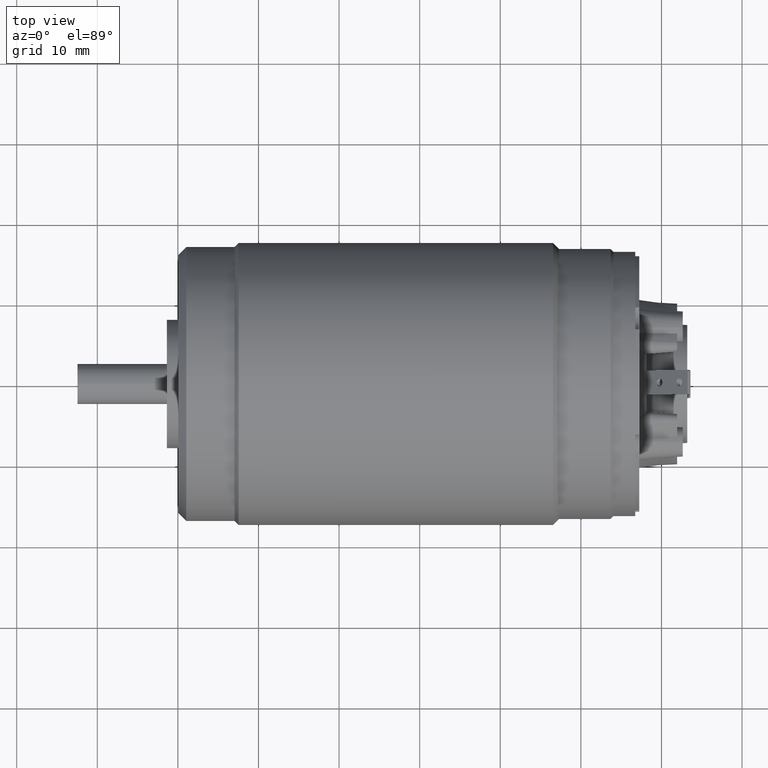
[diagram: clean part render]
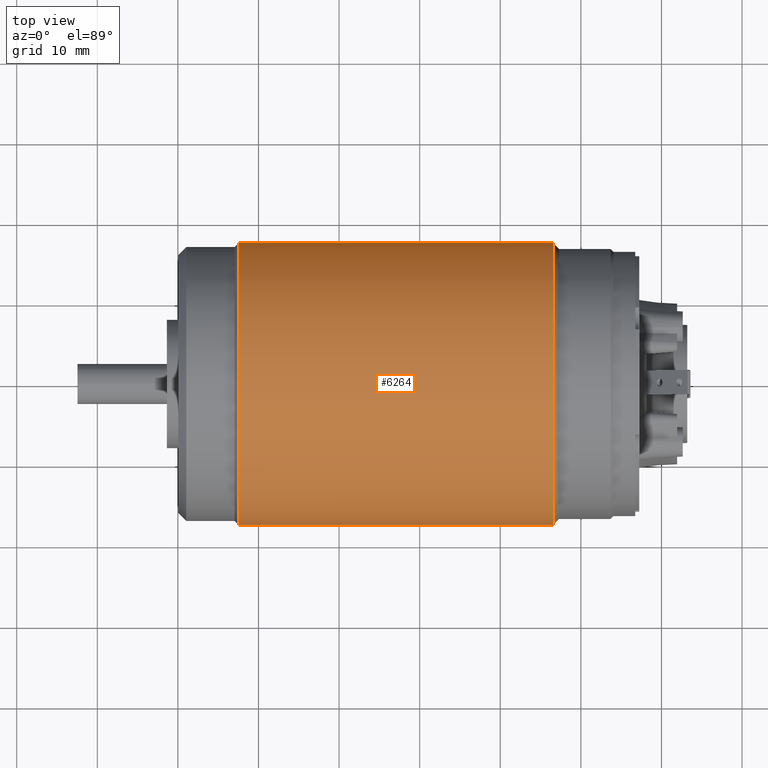
[diagram: same view with one face highlighted and labeled with its STEP entity id]
A machine part, top view. The second image highlights one B-rep face of the part: STEP entity #6264.
In plain terms, the highlighted cylindrical surface (partial cylindrical patch) has radius 17.5 mm, axis along (-1, 0, 0).
Its self-contained STEP definition (entity closure, byte-faithful):
#2183=DIRECTION('',(-1.E0,0.E0,0.E0));
#2184=VECTOR('',#2183,3.9E1);
#2185=CARTESIAN_POINT('',(-3.46E0,1.75E1,0.E0));
#2186=LINE('',#2185,#2184);
#2187=CARTESIAN_POINT('',(-3.46E0,0.E0,0.E0));
#2188=DIRECTION('',(1.E0,0.E0,0.E0));
#2189=DIRECTION('',(0.E0,1.E0,0.E0));
#2190=AXIS2_PLACEMENT_3D('',#2187,#2188,#2189);
#2192=DIRECTION('',(-1.E0,0.E0,0.E0));
#2193=VECTOR('',#2192,3.9E1);
#2194=CARTESIAN_POINT('',(-3.46E0,-1.75E1,0.E0));
#2195=LINE('',#2194,#2193);
#2210=CARTESIAN_POINT('',(-4.246E1,0.E0,0.E0));
#2211=DIRECTION('',(1.E0,0.E0,0.E0));
#2212=DIRECTION('',(0.E0,1.E0,0.E0));
#2213=AXIS2_PLACEMENT_3D('',#2210,#2211,#2212);
#3262=CARTESIAN_POINT('',(-3.46E0,1.75E1,0.E0));
#3263=VERTEX_POINT('',#3262);
#3264=CARTESIAN_POINT('',(-4.246E1,1.75E1,0.E0));
#3265=VERTEX_POINT('',#3264);
#3280=CARTESIAN_POINT('',(-3.46E0,-1.75E1,0.E0));
#3281=VERTEX_POINT('',#3280);
#3282=CARTESIAN_POINT('',(-4.246E1,-1.75E1,0.E0));
#3283=VERTEX_POINT('',#3282);
#6250=CARTESIAN_POINT('',(9.575E0,0.E0,0.E0));
#6251=DIRECTION('',(-1.E0,0.E0,0.E0));
#6252=DIRECTION('',(0.E0,1.E0,0.E0));
#6253=AXIS2_PLACEMENT_3D('',#6250,#6251,#6252);
#6254=CYLINDRICAL_SURFACE('',#6253,1.75E1);
#6256=ORIENTED_EDGE('',*,*,#6255,.F.);
#6257=ORIENTED_EDGE('',*,*,#6245,.T.);
#6259=ORIENTED_EDGE('',*,*,#6258,.T.);
#6261=ORIENTED_EDGE('',*,*,#6260,.F.);
#6262=EDGE_LOOP('',(#6256,#6257,#6259,#6261));
#6263=FACE_OUTER_BOUND('',#6262,.F.);
#6264=ADVANCED_FACE('',(#6263),#6254,.T.);
#2191=CIRCLE('',#2190,1.75E1);
#2214=CIRCLE('',#2213,1.75E1);
#6245=EDGE_CURVE('',#3263,#3281,#2191,.T.);
#6255=EDGE_CURVE('',#3263,#3265,#2186,.T.);
#6258=EDGE_CURVE('',#3281,#3283,#2195,.T.);
#6260=EDGE_CURVE('',#3265,#3283,#2214,.T.);